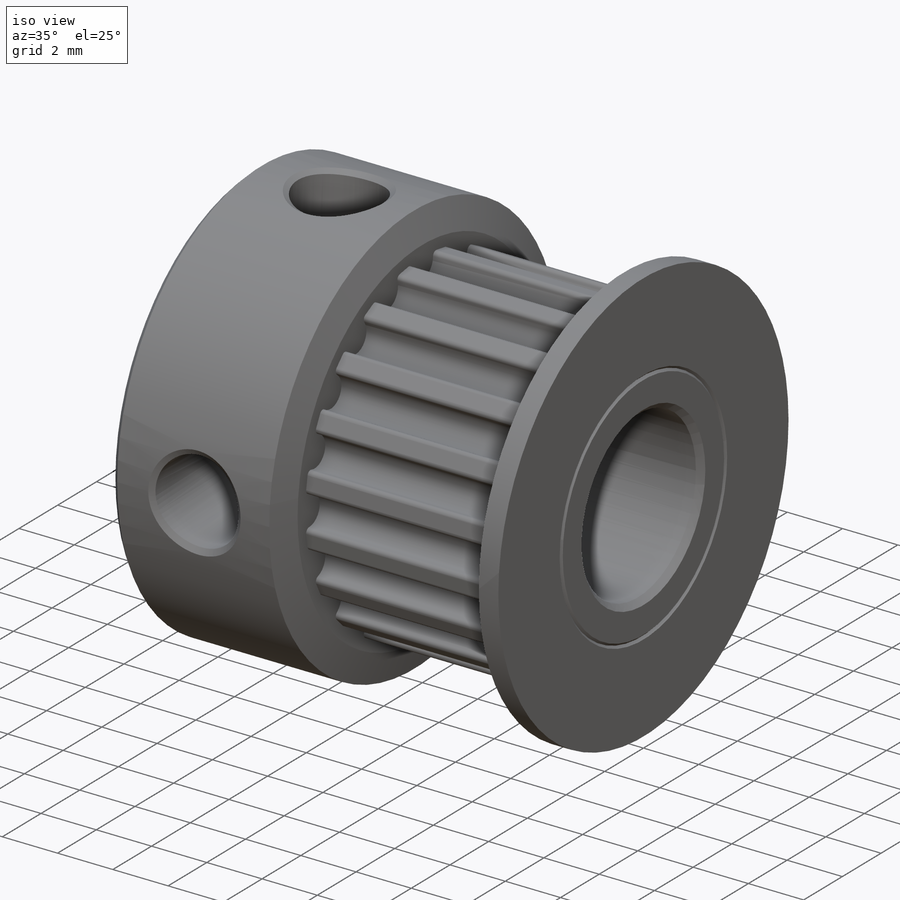
[diagram: iso view]
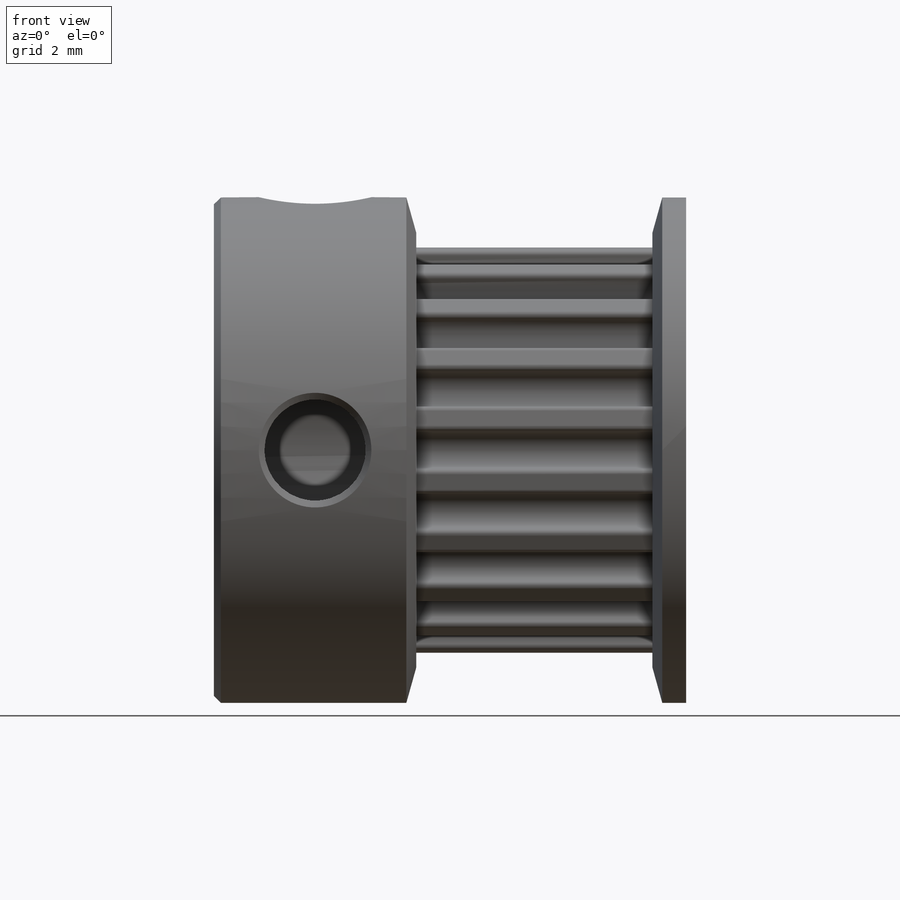
[diagram: front view]
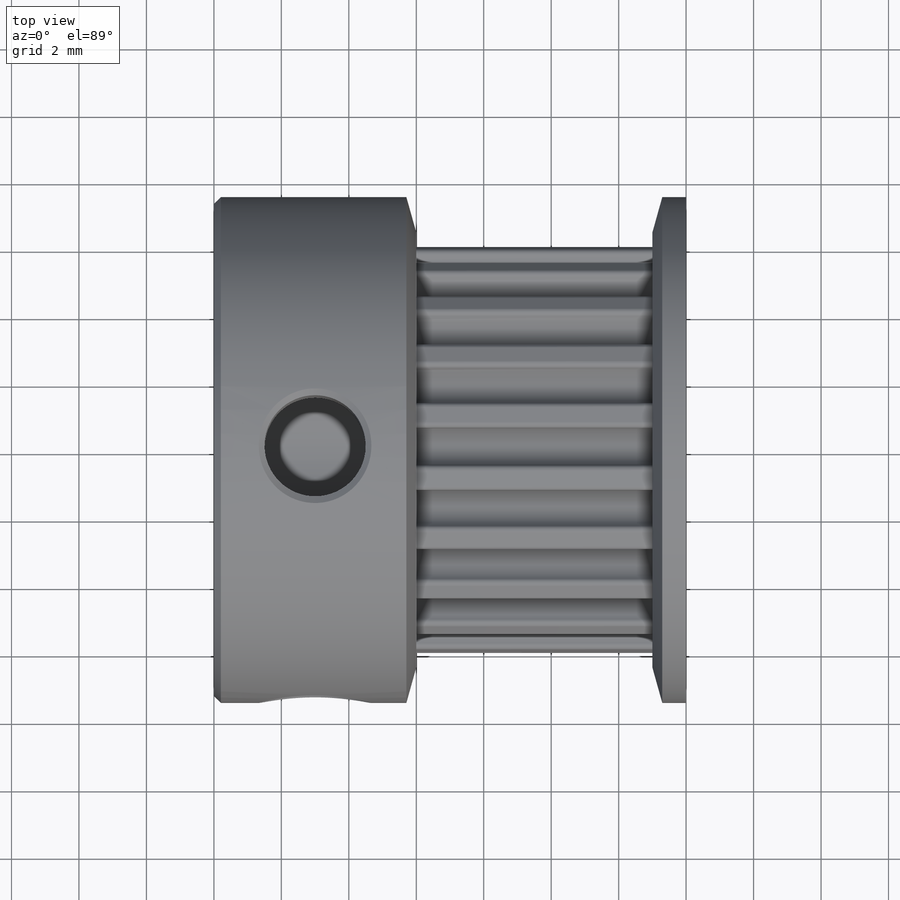
[diagram: top view]
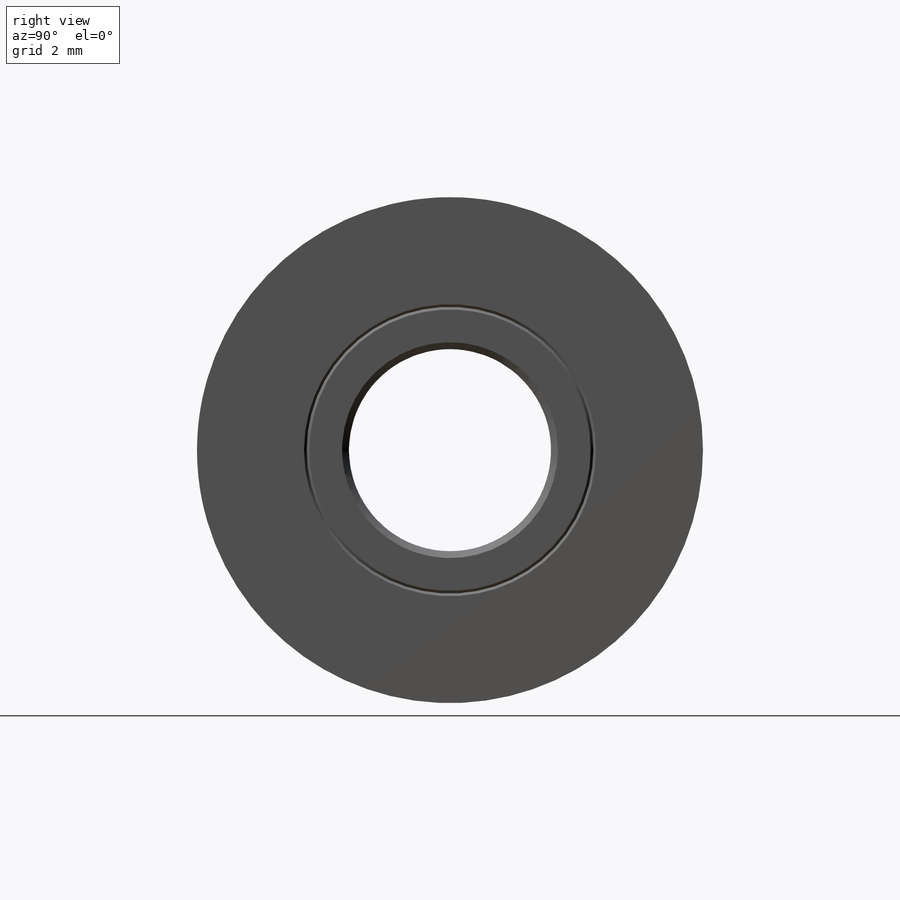
[diagram: right view]
SOLIDWORKS PART (.sldprt)
format: sldprt  version: not decoded by parser v0  size: 564,224 bytes
history: native  units: mm
features: sketch x4, plane x3, cut_extrude x3, material x1, revolve x1, fillet x1, chamfer x1, pattern_circular x1 (+9 scaffold rows collapsed)
feature tree (24):
  scaffold x9  (default folders/planes/origin — collapsed)
  material  "6061-O (SS)"
  plane  "Сверху"
  plane  "Справа"
  plane  "Спереди"
  sketch  "Эскиз1"  dims[c1.D22=0.1mm c1.D1=7.0mm c1.D2=5.5mm c1.D3=7.5mm c1.D4=0.15mm c1.D5=0.5mm c1.D6=1.0mm c1.D7=0.65mm c1.D8=7.0mm c1.D9=7.5mm c1.D10=14.0mm c1.D11=7.5mm c1.D12=1.0mm c1.D13=1.0mm c1.D14=~1.019239mm c2.D13=2.0mm c2.D14=~4.350472mm c2.D15=0.5mm c3.D14=14.0mm c3.D15=1.84mm c3.D17=~0.256133mm c3.D7=6.0mm c3.D8=7.0mm c3.D18=3.5mm c3.D19=~3.501218mm c4.D18=3.5mm c4.D19=0.3mm c4.D20=3.2mm c4.D21=0.3mm c4.D22=~1.390591mm c4.D23=0.1mm c4.D13=4.25mm c4.D6=6.05mm c4.D4=4.25mm c5.D13=~0.615262mm c5.D5=1.0mm c5.D9=5.5mm c5.D2=5.5mm c6.D9=~0.531394mm]
  revolve  "Body"  Angle=360deg
  sketch  "Эскиз2"  dims[D1=6.0mm]
  cut_extrude  "Bore"  [1 undecoded]
  sketch  "Эскиз3"  dims[c1.D1=~0.914771mm c1.D2=1.0mm c2.D1=5.855mm c2.D2=2.0mm]
  cut_extrude  "20tooth"  Depth=7mm
  fillet  "Скругление1"  Radius=0.15mm
  sketch  "Эскиз4"  dims[D1=3.0mm D2=3.0mm D3=3.0mm]
  cut_extrude  "Fix"  [1 undecoded]
  chamfer  "Фаска"  Distance=0.2mm Angle=45deg
  pattern_circular  "Круговой массив1"  Count=2 Angle=270deg
decode coverage: 9 of 11 modeling features carry decoded parameters
note: ~ marks probable driven/reference dimensions
note: 2 parameter values undecoded
note: suppression state not decoded; provenance and decode notes live in map.json
